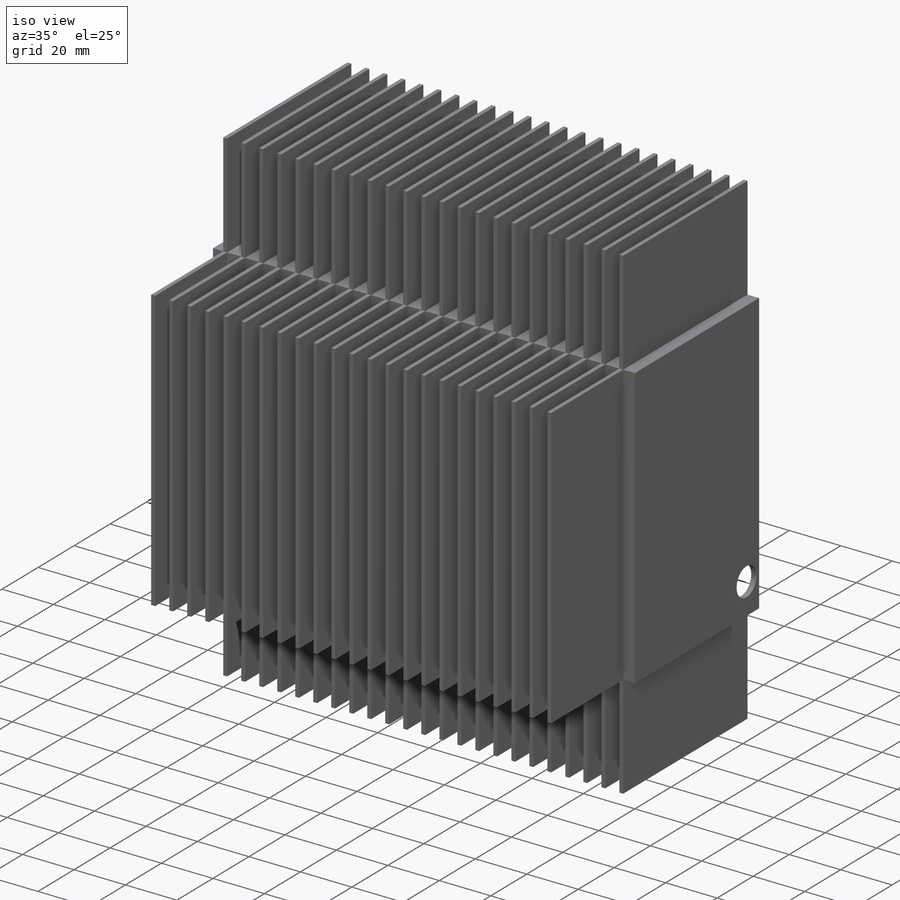
[diagram: iso view]
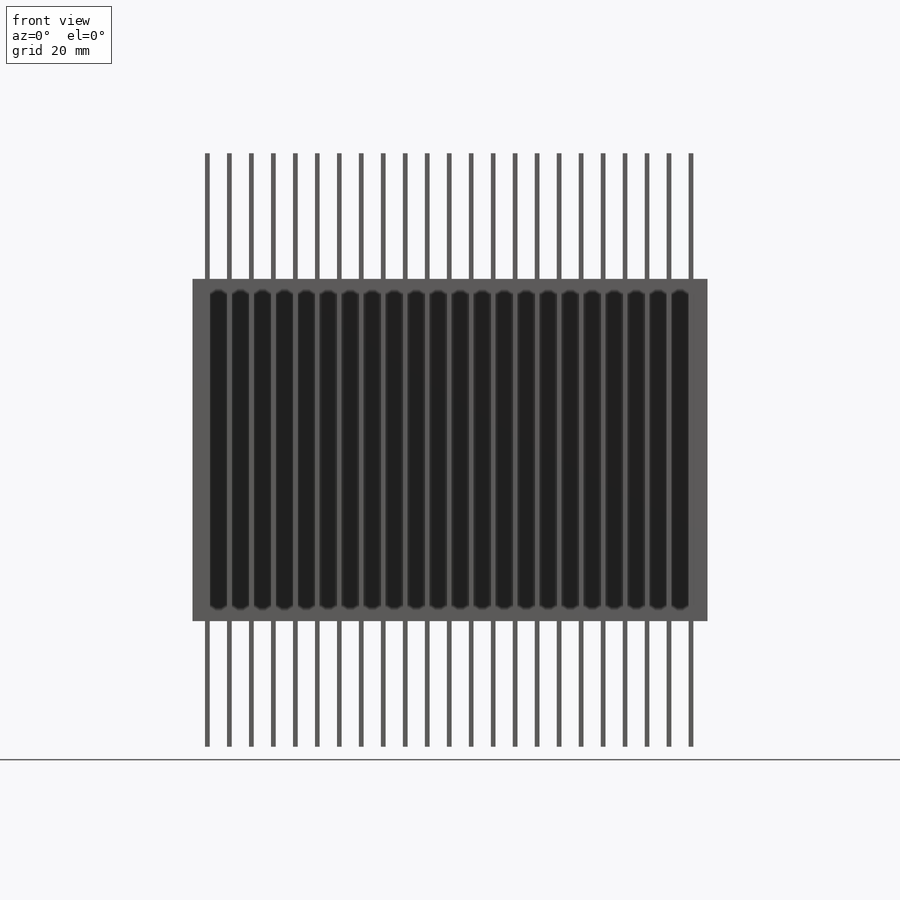
[diagram: front view]
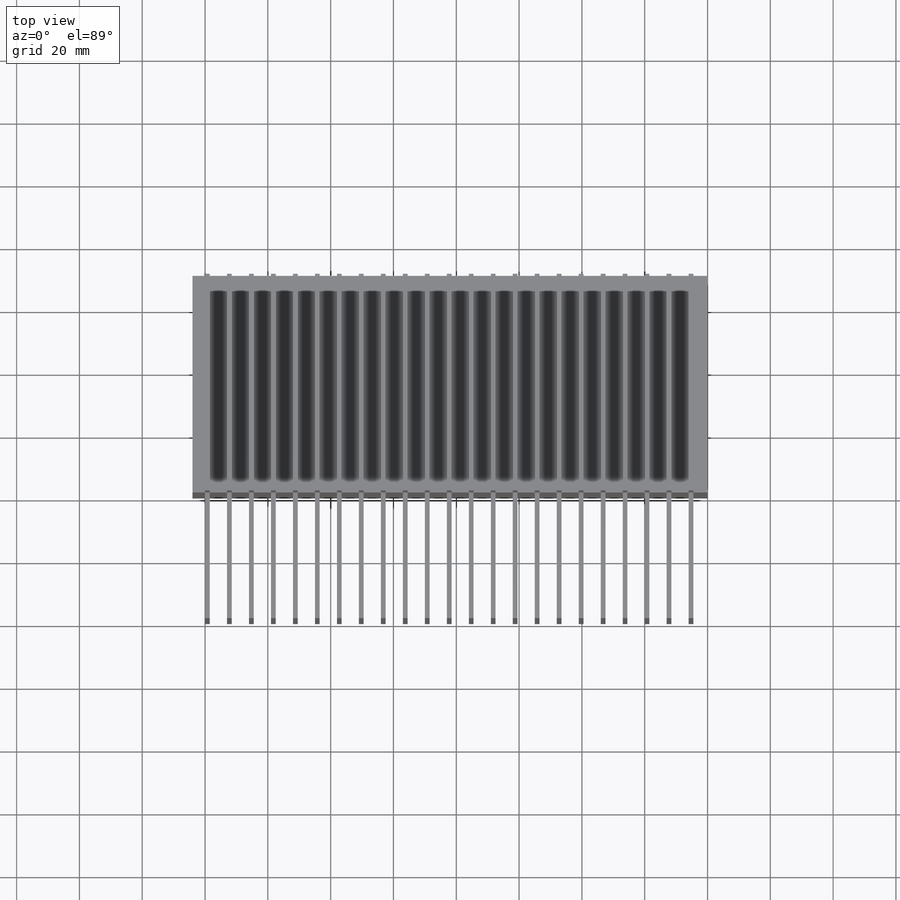
[diagram: top view]
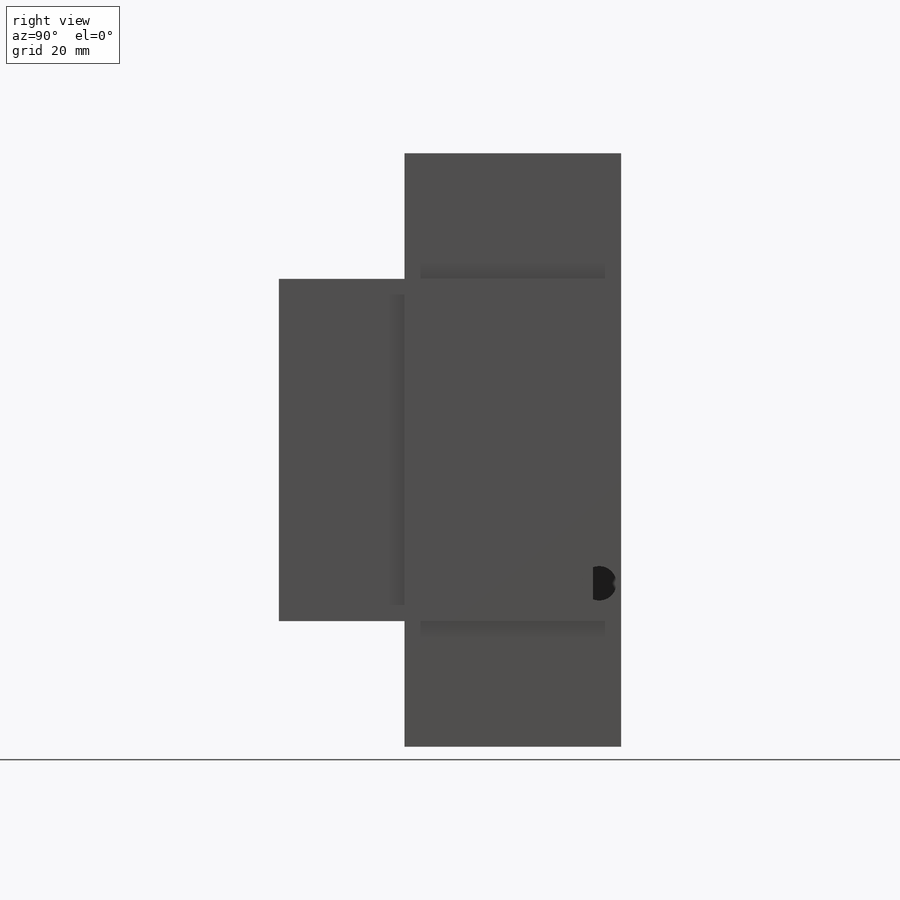
[diagram: right view]
SOLIDWORKS PART (.sldprt)
format: sldprt  version: not decoded by parser v0  size: 708,608 bytes
history: native  units: mm
features: sketch x16, extrude x7, plane x4, cut_extrude x4, pattern_linear x3, material x1 (+12 scaffold rows collapsed)
feature tree (47):
  scaffold x12  (default folders/planes/origin — collapsed)
  material  "Material <not specified>"
  sketch  "Sketch1"  dims[D1=164.0mm D2=109.0mm]
  extrude  "Boss-Extrude1"  Depth=69mm
  sketch  "Sketch2"  dims[D1=4.0mm D2=1.5mm]
  extrude  "Boss-Extrude3"  Depth=40mm
  pattern_linear  "LPattern3"  Count1=23 Count2=1 Spacing1=7mm Spacing2=10mm
  plane  "Plane1"  Offset=2mm
  plane  "Plane2"  Offset=65mm
  sketch  "Sketch4"  dims[D1=2.0mm D2=2.0mm D3=2.0mm D4=2.0mm]
  cut_extrude  "Cut-Extrude5"  Depth=65mm
  plane  "Plane3"  Offset=0mm
  sketch  "Sketch6"  dims[D1=1.5mm]
  extrude  "Boss-Extrude4"  Depth=40mm
  pattern_linear  "LPattern4"  Count1=23 Count2=1 Spacing1=7mm Spacing2=10mm
  plane  "Plane4"  Offset=0mm
  sketch  "Sketch7"  dims[D1=1.5mm]
  extrude  "Boss-Extrude5"  Depth=40mm
  pattern_linear  "LPattern5"  Count1=23 Count2=1 Spacing1=7mm Spacing2=10mm
  sketch  "Sketch15"  dims[c1.D1=8.6mm c1.D2=35.94mm c1.D3=29.0mm c1.D4=5.6mm c2.D1=0.0mm c2.D2=0.0mm c3.D1=37.94mm c3.D2=34.0mm]
  sketch  "Sketch17"  dims[D1=12.95mm]
  sketch  "Sketch19"
  extrude  "Boss-Extrude8"  Depth=55mm
  sketch  "Sketch20"
  extrude  "Boss-Extrude9"  Depth=51mm
  sketch  "Sketch22"  dims[D1=2.0mm D2=2.0mm]
  sketch  "Sketch25"  dims[D1=0.0mm D2=16.13mm D3=39.12mm]
  sketch  "Sketch26"
  extrude  "Boss-Extrude10"  Depth=58mm
  sketch  "Sketch28"  dims[D1=2.0mm D2=2.0mm D3=2.0mm D4=2.0mm]
  sketch  "Sketch29"  dims[D1=4.0mm D2=5.0mm D6=5.0mm D3=2.0 D4=2.0 D5=4.0]
  cut_extrude  "Cut-Extrude12"  Depth=2mm
  sketch  "Sketch31"  dims[D1=11.0mm D2=12.0mm D3=7.0mm]
  cut_extrude  "Cut-Extrude13"  Depth=2mm
  sketch  "Sketch32"  dims[D1=2.0mm D2=2.0mm D3=2.0mm D4=2.0mm]
  cut_extrude  "Cut-Extrude14"  Depth=2mm
decode coverage: 27 of 30 modeling features carry decoded parameters
note: suppression state not decoded; provenance and decode notes live in map.json
